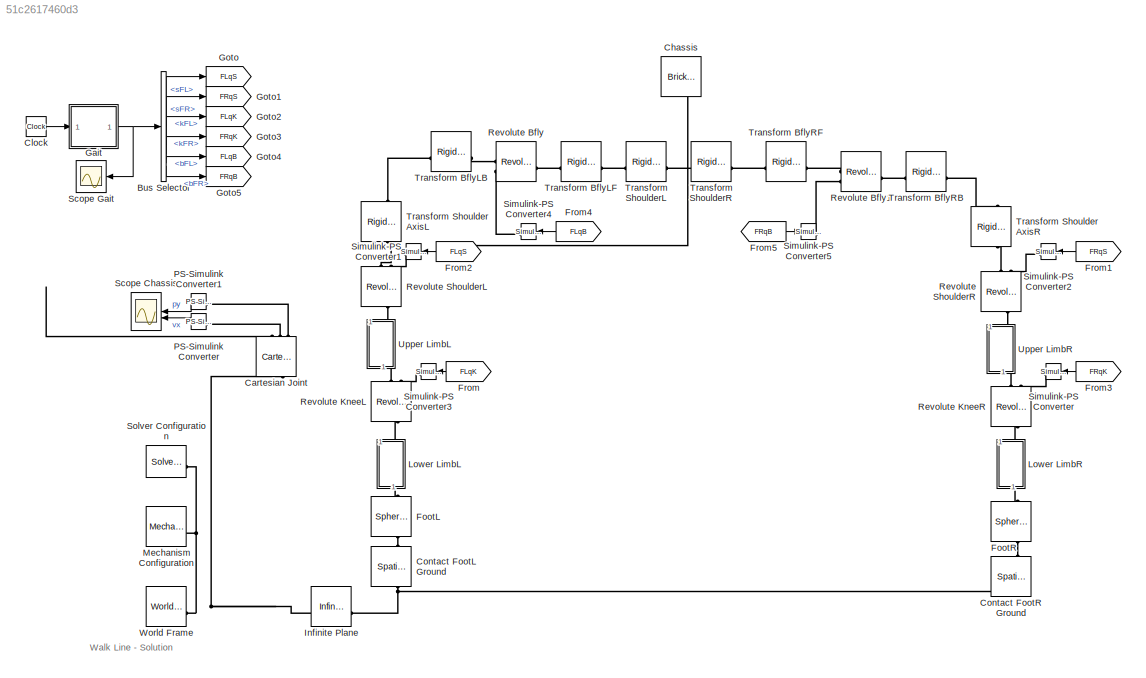
MODEL slx_51c2617460d3
KIND model
CONFIG AbsTol = 1e-3
CONFIG EnableMultiTasking = on
CONFIG FixedStep = auto
CONFIG MaxStep = 1e-2
CONFIG MinStep = auto
CONFIG RelTol = 1e-3
CONFIG SampleTimeConstraint = Unconstrained
CONFIG SolverName = ode23t
CONFIG StartTime = 0.0
CONFIG StopTime = 10.0
BLOCK [BusSelector] Bus Selector
  OutputSignals = sFL,sFR,kFL,kFR,bFL,bFR
BLOCK [Reference] Cartesian Joint  REF=sm_lib/Joints/Cartesian
Joint
  NameLocation = left
  SourceBlock = sm_lib/Joints/Cartesian\nJoint
  SourceType = Cartesian\nJoint
BLOCK [Reference] Chassis  REF=sm_lib/Body Elements/Brick Solid
  NameLocation = left
  SourceBlock = sm_lib/Body Elements/Brick Solid
  SourceType = Brick Solid
BLOCK [Clock] Clock
BLOCK [Reference] Contact FootL Ground  REF=sm_lib/Forces and
Torques/Spatial
Contact Force
  NameLocation = right
  SourceBlock = sm_lib/Forces and\nTorques/Spatial\nContact Force
  SourceType = Spatial\nContact Force
BLOCK [Reference] Contact FootR Ground  REF=sm_lib/Forces and
Torques/Spatial
Contact Force
  NameLocation = left
  SourceBlock = sm_lib/Forces and\nTorques/Spatial\nContact Force
  SourceType = Spatial\nContact Force
BLOCK [Reference] FootL  REF=sm_lib/Body Elements/Spherical Solid
  NameLocation = left
  SourceBlock = sm_lib/Body Elements/Spherical Solid
  SourceType = Spherical Solid
BLOCK [Reference] FootR  REF=sm_lib/Body Elements/Spherical Solid
  NameLocation = left
  SourceBlock = sm_lib/Body Elements/Spherical Solid
  SourceType = Spherical Solid
BLOCK [From] From
  GotoTag = FLqK
BLOCK [From] From1
  GotoTag = FRqS
BLOCK [From] From2
  GotoTag = FLqS
BLOCK [From] From3
  GotoTag = FRqK
BLOCK [From] From4
  GotoTag = FLqB
BLOCK [From] From5
  GotoTag = FRqB
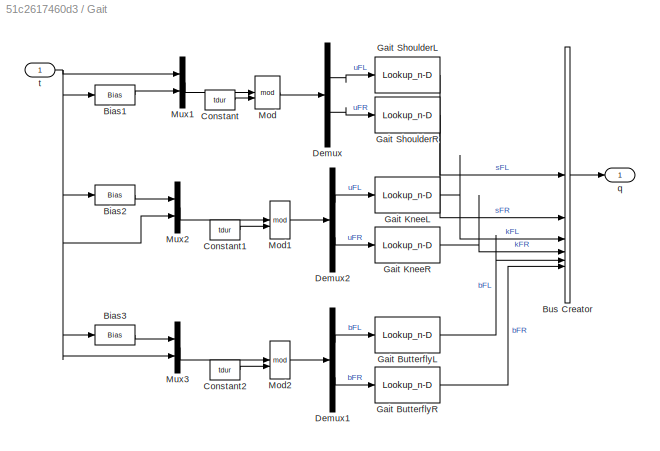
BLOCK [SubSystem] Gait
BLOCK [Bias] Gait/Bias1
  Bias = tdur/2
  SaturateOnIntegerOverflow = off
BLOCK [Bias] Gait/Bias2
  Bias = tdur/2
  SaturateOnIntegerOverflow = off
BLOCK [Bias] Gait/Bias3
  Bias = tdur/2
  SaturateOnIntegerOverflow = off
BLOCK [BusCreator] Gait/Bus Creator
  DisplayOption = bar
  InheritFromInputs = on
  Inputs = 6
BLOCK [Constant] Gait/Constant
  Value = tdur
BLOCK [Constant] Gait/Constant1
  Value = tdur
BLOCK [Constant] Gait/Constant2
  Value = tdur
BLOCK [Demux] Gait/Demux
  Outputs = 2
BLOCK [Demux] Gait/Demux1
  Outputs = 2
BLOCK [Demux] Gait/Demux2
  Outputs = 2
BLOCK [Lookup_n-D] Gait/Gait ButterflyL
  BreakpointsForDimension1 = [0 0.25 0.5 0.75 1]*tdur
  InputPortMap = u0
  InternalRulePriority = Speed
  InterpMethod = Akima spline
  NameLocation = top
  NumberOfTableDimensions = 1
  RndMeth = Simplest
  Table = [bMin (bMin+bMax)/2 bMax (bMin+bMax)/2 bMin]
BLOCK [Lookup_n-D] Gait/Gait ButterflyR
  BreakpointsForDimension1 = [0 0.25 0.5 0.75 1]*tdur
  InputPortMap = u0
  InternalRulePriority = Speed
  InterpMethod = Akima spline
  NumberOfTableDimensions = 1
  RndMeth = Simplest
  Table = -[bMin (bMin+bMax)/2 bMax (bMin+bMax)/2 bMin]
BLOCK [Lookup_n-D] Gait/Gait KneeL
  BreakpointsForDimension1 = [0     0.25 0.5   0.75 1      1]*tdur+[0 0 0 0 -tExtKnee 0]
  InputPortMap = u0
  InternalRulePriority = Speed
  InterpMethod = Akima spline
  NameLocation = top
  NumberOfTableDimensions = 1
  RndMeth = Simplest
  Table = [lMin lMin lMax lMax lMax lMin]
BLOCK [Lookup_n-D] Gait/Gait KneeR
  BreakpointsForDimension1 = [0     0.25 0.5   0.75 1      1]*tdur+[0 0 0 0 -tExtKnee 0]
  InputPortMap = u0
  InternalRulePriority = Speed
  InterpMethod = Akima spline
  NumberOfTableDimensions = 1
  RndMeth = Simplest
  Table = [lMin lMin lMax lMax lMax lMin]
BLOCK [Lookup_n-D] Gait/Gait ShoulderL
  BreakpointsForDimension1 = [0 0.25 0.5 0.75 1]*tdur
  InputPortMap = u0
  InternalRulePriority = Speed
  InterpMethod = Akima spline
  NameLocation = top
  NumberOfTableDimensions = 1
  RndMeth = Simplest
  Table = [uMin (uMin+uMax)/2 uMax (uMin+uMax)/2 uMin]
BLOCK [Lookup_n-D] Gait/Gait ShoulderR
  BreakpointsForDimension1 = [0 0.25 0.5 0.75 1]*tdur
  InputPortMap = u0
  InternalRulePriority = Speed
  InterpMethod = Akima spline
  NumberOfTableDimensions = 1
  RndMeth = Simplest
  Table = [uMin (uMin+uMax)/2 uMax (uMin+uMax)/2 uMin]
BLOCK [Math] Gait/Mod
  Operator = mod
BLOCK [Math] Gait/Mod1
  Operator = mod
BLOCK [Math] Gait/Mod2
  Operator = mod
BLOCK [Mux] Gait/Mux1
  DisplayOption = bar
  Inputs = 2
BLOCK [Mux] Gait/Mux2
  DisplayOption = bar
  Inputs = 2
BLOCK [Mux] Gait/Mux3
  DisplayOption = bar
  Inputs = 2
BLOCK [Outport] Gait/q
BLOCK [Inport] Gait/t
BLOCK [Goto] Goto
  GotoTag = FLqS
BLOCK [Goto] Goto1
  GotoTag = FRqS
BLOCK [Goto] Goto2
  GotoTag = FLqK
BLOCK [Goto] Goto3
  GotoTag = FRqK
BLOCK [Goto] Goto4
  GotoTag = FLqB
BLOCK [Goto] Goto5
  GotoTag = FRqB
BLOCK [Reference] Infinite Plane  REF=sm_lib/Curves and Surfaces/Infinite Plane
  SourceBlock = sm_lib/Curves and Surfaces/Infinite Plane
  SourceType = Infinite Plane
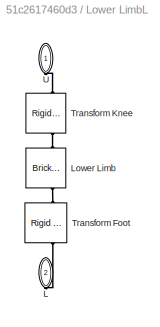
BLOCK [SubSystem] Lower LimbL
  NameLocation = left
BLOCK [PMIOPort] Lower LimbL/L
  NameLocation = left
  Port = 2
  Side = Right
BLOCK [Reference] Lower LimbL/Lower Limb  REF=sm_lib/Body Elements/Brick Solid
  NameLocation = left
  SourceBlock = sm_lib/Body Elements/Brick Solid
  SourceType = Brick Solid
BLOCK [Reference] Lower LimbL/Transform Foot  REF=sm_lib/Frames and
Transforms/Rigid
Transform
  NameLocation = left
  SourceBlock = sm_lib/Frames and\nTransforms/Rigid\nTransform
  SourceType = Rigid\nTransform
BLOCK [Reference] Lower LimbL/Transform Knee  REF=sm_lib/Frames and
Transforms/Rigid
Transform
  NameLocation = left
  SourceBlock = sm_lib/Frames and\nTransforms/Rigid\nTransform
  SourceType = Rigid\nTransform
BLOCK [PMIOPort] Lower LimbL/U
  NameLocation = right
  Side = Left
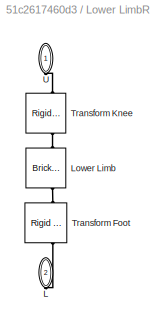
BLOCK [SubSystem] Lower LimbR
  NameLocation = left
BLOCK [PMIOPort] Lower LimbR/L
  NameLocation = left
  Port = 2
  Side = Right
BLOCK [Reference] Lower LimbR/Lower Limb  REF=sm_lib/Body Elements/Brick Solid
  NameLocation = left
  SourceBlock = sm_lib/Body Elements/Brick Solid
  SourceType = Brick Solid
BLOCK [Reference] Lower LimbR/Transform Foot  REF=sm_lib/Frames and
Transforms/Rigid
Transform
  NameLocation = left
  SourceBlock = sm_lib/Frames and\nTransforms/Rigid\nTransform
  SourceType = Rigid\nTransform
BLOCK [Reference] Lower LimbR/Transform Knee  REF=sm_lib/Frames and
Transforms/Rigid
Transform
  NameLocation = left
  SourceBlock = sm_lib/Frames and\nTransforms/Rigid\nTransform
  SourceType = Rigid\nTransform
BLOCK [PMIOPort] Lower LimbR/U
  NameLocation = right
  Side = Left
BLOCK [Reference] Mechanism Configuration  REF=sm_lib/Utilities/Mechanism
Configuration
  SourceBlock = sm_lib/Utilities/Mechanism\nConfiguration
  SourceType = Mechanism\nConfiguration
BLOCK [Reference] PS-Simulink Converter  REF=nesl_utility/PS-Simulink
Converter
  NameLocation = top
  SourceBlock = nesl_utility/PS-Simulink\nConverter
  SourceType = PS-Simulink\nConverter
BLOCK [Reference] PS-Simulink Converter1  REF=nesl_utility/PS-Simulink
Converter
  NameLocation = top
  SourceBlock = nesl_utility/PS-Simulink\nConverter
  SourceType = PS-Simulink\nConverter
BLOCK [Reference] Revolute Bfly  REF=sm_lib/Joints/Revolute Joint
  SourceBlock = sm_lib/Joints/Revolute Joint
  SourceType = Revolute Joint
BLOCK [Reference] Revolute Bfly1  REF=sm_lib/Joints/Revolute Joint
  SourceBlock = sm_lib/Joints/Revolute Joint
  SourceType = Revolute Joint
BLOCK [Reference] Revolute KneeL  REF=sm_lib/Joints/Revolute Joint
  NameLocation = left
  SourceBlock = sm_lib/Joints/Revolute Joint
  SourceType = Revolute Joint
BLOCK [Reference] Revolute KneeR  REF=sm_lib/Joints/Revolute Joint
  NameLocation = left
  SourceBlock = sm_lib/Joints/Revolute Joint
  SourceType = Revolute Joint
BLOCK [Reference] Revolute ShoulderL  REF=sm_lib/Joints/Revolute Joint
  NameLocation = left
  SourceBlock = sm_lib/Joints/Revolute Joint
  SourceType = Revolute Joint
BLOCK [Reference] Revolute ShoulderR  REF=sm_lib/Joints/Revolute Joint
  NameLocation = left
  SourceBlock = sm_lib/Joints/Revolute Joint
  SourceType = Revolute Joint
BLOCK [Scope] Scope Chassis
  Floating = off
  NumInputPorts = 2
  ScopeSpecificationString = Simulink.scopes.TimeScopeBlockCfg('CurrentConfiguration', extmgr.ConfigurationSet(extmgr.Configuration('Core','General UI',true),extmgr.Configuration('Core','Source UI',true),extmgr.Configuration('Sources','WiredSimulink',true,'DataLoggingVariableName','ScopeData2'),extmgr.Configuration('Visuals','Time Domain',true,'SerializedDisplays',{struct('MinYLimReal','-0.27815','MaxYLimReal','0.03627','YLab...<+2222ch>
BLOCK [Scope] Scope Gait
  Floating = off
  NumInputPorts = 1
  ScopeSpecificationString = Simulink.scopes.TimeScopeBlockCfg('CurrentConfiguration', extmgr.ConfigurationSet(extmgr.Configuration('Core','General UI',true),extmgr.Configuration('Core','Source UI',true),extmgr.Configuration('Sources','WiredSimulink',true,'DataLoggingVariableName','ScopeData1'),extmgr.Configuration('Visuals','Time Domain',true,'SerializedDisplays',{struct('MinYLimReal','-84.92464','MaxYLimReal','114.32173','Y...<+1551ch>
BLOCK [Reference] Simulink-PS Converter  REF=nesl_utility/Simulink-PS
Converter
  NameLocation = top
  SourceBlock = nesl_utility/Simulink-PS\nConverter
  SourceType = Simulink-PS\nConverter
BLOCK [Reference] Simulink-PS Converter1  REF=nesl_utility/Simulink-PS
Converter
  SourceBlock = nesl_utility/Simulink-PS\nConverter
  SourceType = Simulink-PS\nConverter
BLOCK [Reference] Simulink-PS Converter2  REF=nesl_utility/Simulink-PS
Converter
  SourceBlock = nesl_utility/Simulink-PS\nConverter
  SourceType = Simulink-PS\nConverter
BLOCK [Reference] Simulink-PS Converter3  REF=nesl_utility/Simulink-PS
Converter
  SourceBlock = nesl_utility/Simulink-PS\nConverter
  SourceType = Simulink-PS\nConverter
BLOCK [Reference] Simulink-PS Converter4  REF=nesl_utility/Simulink-PS
Converter
  SourceBlock = nesl_utility/Simulink-PS\nConverter
  SourceType = Simulink-PS\nConverter
BLOCK [Reference] Simulink-PS Converter5  REF=nesl_utility/Simulink-PS
Converter
  SourceBlock = nesl_utility/Simulink-PS\nConverter
  SourceType = Simulink-PS\nConverter
BLOCK [Reference] Solver Configuration  REF=nesl_utility/Solver
Configuration
  SourceBlock = nesl_utility/Solver\nConfiguration
  SourceType = Solver\nConfiguration
BLOCK [Reference] Transform BflyLB  REF=sm_lib/Frames and
Transforms/Rigid
Transform
  SourceBlock = sm_lib/Frames and\nTransforms/Rigid\nTransform
  SourceType = Rigid\nTransform
BLOCK [Reference] Transform BflyLF  REF=sm_lib/Frames and
Transforms/Rigid
Transform
  SourceBlock = sm_lib/Frames and\nTransforms/Rigid\nTransform
  SourceType = Rigid\nTransform
BLOCK [Reference] Transform BflyRB  REF=sm_lib/Frames and
Transforms/Rigid
Transform
  SourceBlock = sm_lib/Frames and\nTransforms/Rigid\nTransform
  SourceType = Rigid\nTransform
BLOCK [Reference] Transform BflyRF  REF=sm_lib/Frames and
Transforms/Rigid
Transform
  SourceBlock = sm_lib/Frames and\nTransforms/Rigid\nTransform
  SourceType = Rigid\nTransform
BLOCK [Reference] Transform Shoulder AxisL  REF=sm_lib/Frames and
Transforms/Rigid
Transform
  NameLocation = left
  SourceBlock = sm_lib/Frames and\nTransforms/Rigid\nTransform
  SourceType = Rigid\nTransform
BLOCK [Reference] Transform Shoulder AxisR  REF=sm_lib/Frames and
Transforms/Rigid
Transform
  NameLocation = right
  SourceBlock = sm_lib/Frames and\nTransforms/Rigid\nTransform
  SourceType = Rigid\nTransform
BLOCK [Reference] Transform ShoulderL  REF=sm_lib/Frames and
Transforms/Rigid
Transform
  SourceBlock = sm_lib/Frames and\nTransforms/Rigid\nTransform
  SourceType = Rigid\nTransform
BLOCK [Reference] Transform ShoulderR  REF=sm_lib/Frames and
Transforms/Rigid
Transform
  SourceBlock = sm_lib/Frames and\nTransforms/Rigid\nTransform
  SourceType = Rigid\nTransform
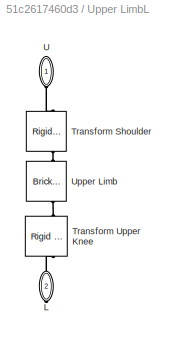
BLOCK [SubSystem] Upper LimbL
  NameLocation = left
BLOCK [PMIOPort] Upper LimbL/L
  NameLocation = left
  Port = 2
  Side = Right
BLOCK [Reference] Upper LimbL/Transform Shoulder  REF=sm_lib/Frames and
Transforms/Rigid
Transform
  NameLocation = left
  SourceBlock = sm_lib/Frames and\nTransforms/Rigid\nTransform
  SourceType = Rigid\nTransform
BLOCK [Reference] Upper LimbL/Transform Upper Knee  REF=sm_lib/Frames and
Transforms/Rigid
Transform
  NameLocation = left
  SourceBlock = sm_lib/Frames and\nTransforms/Rigid\nTransform
  SourceType = Rigid\nTransform
BLOCK [PMIOPort] Upper LimbL/U
  NameLocation = left
  Side = Left
BLOCK [Reference] Upper LimbL/Upper Limb  REF=sm_lib/Body Elements/Brick Solid
  NameLocation = left
  SourceBlock = sm_lib/Body Elements/Brick Solid
  SourceType = Brick Solid
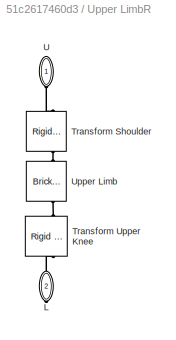
BLOCK [SubSystem] Upper LimbR
  NameLocation = left
BLOCK [PMIOPort] Upper LimbR/L
  NameLocation = left
  Port = 2
  Side = Right
BLOCK [Reference] Upper LimbR/Transform Shoulder  REF=sm_lib/Frames and
Transforms/Rigid
Transform
  NameLocation = left
  SourceBlock = sm_lib/Frames and\nTransforms/Rigid\nTransform
  SourceType = Rigid\nTransform
BLOCK [Reference] Upper LimbR/Transform Upper Knee  REF=sm_lib/Frames and
Transforms/Rigid
Transform
  NameLocation = left
  SourceBlock = sm_lib/Frames and\nTransforms/Rigid\nTransform
  SourceType = Rigid\nTransform
BLOCK [PMIOPort] Upper LimbR/U
  NameLocation = left
  Side = Left
BLOCK [Reference] Upper LimbR/Upper Limb  REF=sm_lib/Body Elements/Brick Solid
  NameLocation = left
  SourceBlock = sm_lib/Body Elements/Brick Solid
  SourceType = Brick Solid
BLOCK [Reference] World Frame  REF=sm_lib/Frames and
Transforms/World Frame
  SourceBlock = sm_lib/Frames and\nTransforms/World Frame
  SourceType = World Frame
ANNOTATION (root): Walk Line - Solution
LINE Bus Selector:1 -> Goto:1
LINE Bus Selector:2 -> Goto1:1
LINE Bus Selector:3 -> Goto2:1
LINE Bus Selector:4 -> Goto3:1
LINE Bus Selector:5 -> Goto4:1
LINE Bus Selector:6 -> Goto5:1
LINE Clock:1 -> Gait:1
LINE From1:1 -> Simulink-PS Converter2:1
LINE From2:1 -> Simulink-PS Converter1:1
LINE From3:1 -> Simulink-PS Converter:1
LINE From4:1 -> Simulink-PS Converter4:1
LINE From5:1 -> Simulink-PS Converter5:1
LINE From:1 -> Simulink-PS Converter3:1
LINE Gait/Bias1:1 -> Gait/Mux1:2
LINE Gait/Bias2:1 -> Gait/Mux2:1
LINE Gait/Bias3:1 -> Gait/Mux3:1
LINE Gait/Bus Creator:1 -> Gait/q:1
LINE Gait/Constant1:1 -> Gait/Mod1:2
LINE Gait/Constant2:1 -> Gait/Mod2:2
LINE Gait/Constant:1 -> Gait/Mod:2
LINE Gait/Demux1:1 -> Gait/Gait ButterflyL:1
LINE Gait/Demux1:2 -> Gait/Gait ButterflyR:1
LINE Gait/Demux2:1 -> Gait/Gait KneeL:1
LINE Gait/Demux2:2 -> Gait/Gait KneeR:1
LINE Gait/Demux:1 -> Gait/Gait ShoulderL:1
LINE Gait/Demux:2 -> Gait/Gait ShoulderR:1
LINE Gait/Gait ButterflyL:1 -> Gait/Bus Creator:5
LINE Gait/Gait ButterflyR:1 -> Gait/Bus Creator:6
LINE Gait/Gait KneeL:1 -> Gait/Bus Creator:3
LINE Gait/Gait KneeR:1 -> Gait/Bus Creator:4
LINE Gait/Gait ShoulderL:1 -> Gait/Bus Creator:1
LINE Gait/Gait ShoulderR:1 -> Gait/Bus Creator:2
LINE Gait/Mod1:1 -> Gait/Demux2:1
LINE Gait/Mod2:1 -> Gait/Demux1:1
LINE Gait/Mod:1 -> Gait/Demux:1
LINE Gait/Mux1:1 -> Gait/Mod:1
LINE Gait/Mux2:1 -> Gait/Mod1:1
LINE Gait/Mux3:1 -> Gait/Mod2:1
NET Gait/t:1 -> Gait/Bias1:1, Gait/Bias2:1, Gait/Bias3:1, Gait/Mux1:1, Gait/Mux2:2, Gait/Mux3:2
NET Gait:1 -> Bus Selector:1, Scope Gait:1
LINE PS-Simulink Converter1:1 -> Scope Chassis:1
LINE PS-Simulink Converter:1 -> Scope Chassis:2
PNET net1: Cartesian Joint:LConn1 -- Infinite Plane:LConn1 -- Mechanism Configuration:RConn1 -- Solver Configuration:RConn1 -- World Frame:RConn1
PNET net2: Cartesian Joint:RConn1 -- Chassis:RConn1 -- Transform ShoulderL:RConn1 -- Transform ShoulderR:LConn1
PLINE Cartesian Joint:RConn2 -- PS-Simulink Converter:LConn1
PLINE Cartesian Joint:RConn3 -- PS-Simulink Converter1:LConn1
PLINE Contact FootL Ground:LConn1 -- FootL:LConn1
PNET net3: Contact FootL Ground:RConn1 -- Contact FootR Ground:RConn1 -- Infinite Plane:RConn1
PLINE Contact FootR Ground:LConn1 -- FootR:LConn1
PLINE FootL:RConn1 -- Lower LimbL:RConn1
PLINE FootR:RConn1 -- Lower LimbR:RConn1
PLINE Lower LimbL/L:RConn1 -- Lower LimbL/Transform Foot:RConn1
PLINE Lower LimbL/Lower Limb:LConn1 -- Lower LimbL/Transform Knee:LConn1
PLINE Lower LimbL/Lower Limb:RConn1 -- Lower LimbL/Transform Foot:LConn1
PLINE Lower LimbL/Transform Knee:RConn1 -- Lower LimbL/U:RConn1
PLINE Lower LimbL:LConn1 -- Revolute KneeL:RConn1
PLINE Lower LimbR/L:RConn1 -- Lower LimbR/Transform Foot:RConn1
PLINE Lower LimbR/Lower Limb:LConn1 -- Lower LimbR/Transform Knee:LConn1
PLINE Lower LimbR/Lower Limb:RConn1 -- Lower LimbR/Transform Foot:LConn1
PLINE Lower LimbR/Transform Knee:RConn1 -- Lower LimbR/U:RConn1
PLINE Lower LimbR:LConn1 -- Revolute KneeR:RConn1
PLINE Revolute Bfly1:LConn1 -- Transform BflyRF:RConn1
PLINE Revolute Bfly1:LConn2 -- Simulink-PS Converter5:RConn1
PLINE Revolute Bfly1:RConn1 -- Transform BflyRB:RConn1
PLINE Revolute Bfly:LConn1 -- Transform BflyLB:RConn1
PLINE Revolute Bfly:LConn2 -- Simulink-PS Converter4:RConn1
PLINE Revolute Bfly:RConn1 -- Transform BflyLF:RConn1
PLINE Revolute KneeL:LConn1 -- Upper LimbL:RConn1
PLINE Revolute KneeL:LConn2 -- Simulink-PS Converter3:RConn1
PLINE Revolute KneeR:LConn1 -- Upper LimbR:RConn1
PLINE Revolute KneeR:LConn2 -- Simulink-PS Converter:RConn1
PLINE Revolute ShoulderL:LConn1 -- Transform Shoulder AxisL:RConn1
PLINE Revolute ShoulderL:LConn2 -- Simulink-PS Converter1:RConn1
PLINE Revolute ShoulderL:RConn1 -- Upper LimbL:LConn1
PLINE Revolute ShoulderR:LConn1 -- Transform Shoulder AxisR:RConn1
PLINE Revolute ShoulderR:LConn2 -- Simulink-PS Converter2:RConn1
PLINE Revolute ShoulderR:RConn1 -- Upper LimbR:LConn1
PLINE Transform BflyLB:LConn1 -- Transform Shoulder AxisL:LConn1
PLINE Transform BflyLF:LConn1 -- Transform ShoulderL:LConn1
PLINE Transform BflyRB:LConn1 -- Transform Shoulder AxisR:LConn1
PLINE Transform BflyRF:LConn1 -- Transform ShoulderR:RConn1
PLINE Upper LimbL/L:RConn1 -- Upper LimbL/Transform Upper Knee:RConn1
PLINE Upper LimbL/Transform Shoulder:LConn1 -- Upper LimbL/Upper Limb:LConn1
PLINE Upper LimbL/Transform Shoulder:RConn1 -- Upper LimbL/U:RConn1
PLINE Upper LimbL/Transform Upper Knee:LConn1 -- Upper LimbL/Upper Limb:RConn1
PLINE Upper LimbR/L:RConn1 -- Upper LimbR/Transform Upper Knee:RConn1
PLINE Upper LimbR/Transform Shoulder:LConn1 -- Upper LimbR/Upper Limb:LConn1
PLINE Upper LimbR/Transform Shoulder:RConn1 -- Upper LimbR/U:RConn1
PLINE Upper LimbR/Transform Upper Knee:LConn1 -- Upper LimbR/Upper Limb:RConn1
note: NET lines group one-source signal fan-out (src -> all destinations, sorted); 1:1 wires keep LINE; PNET lines group multi-terminal physical nets as a canonical sorted terminal list (undirected conserving connections); 2-terminal nets keep the pairwise PLINE form
